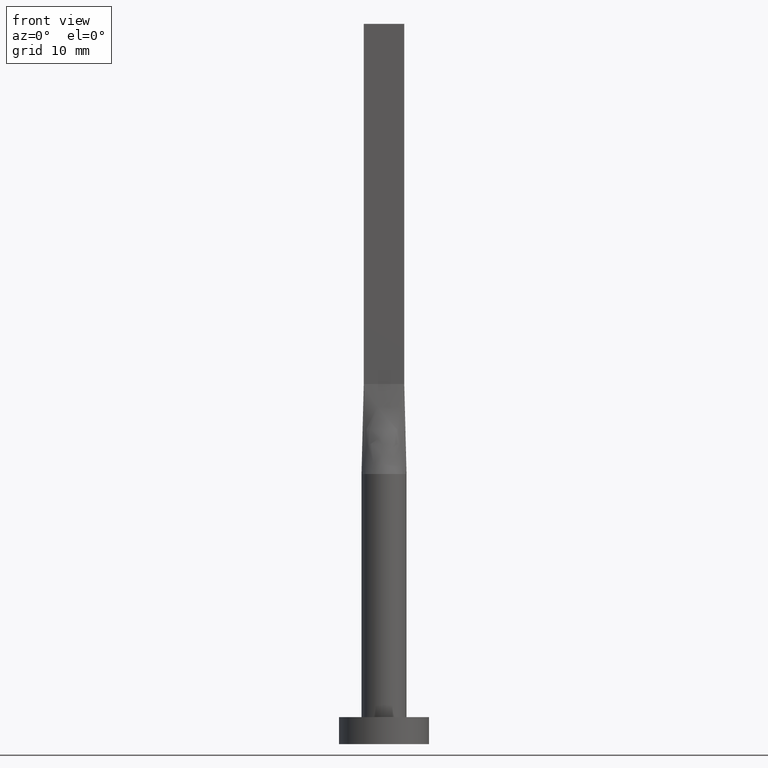
[diagram: clean part render]
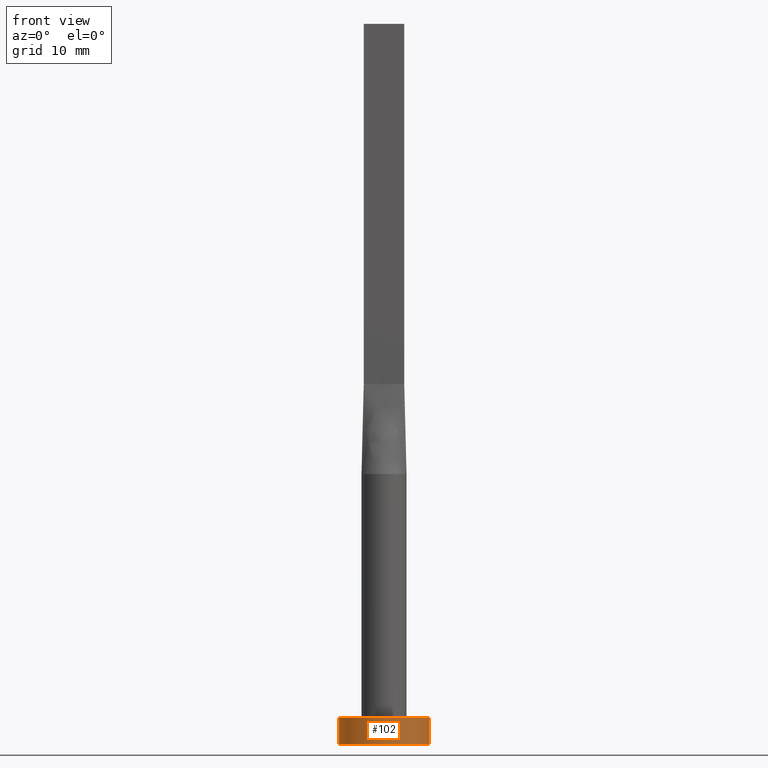
[diagram: same view with one face highlighted and labeled with its STEP entity id]
A machine part, front view. The second image highlights one B-rep face of the part: STEP entity #102.
In plain terms, the highlighted cylindrical surface (partial cylindrical patch) has radius 5 mm, axis along (-0, -0, -1).
Its self-contained STEP definition (entity closure, byte-faithful):
#5 = DIRECTION ( 'NONE',  ( 1.000000000000000000, 0.000000000000000000, 0.000000000000000000 ) ) ;
#21 = ORIENTED_EDGE ( 'NONE', *, *, #166, .T. ) ;
#33 = DIRECTION ( 'NONE',  ( -0.000000000000000000, -0.000000000000000000, -1.000000000000000000 ) ) ;
#57 = ORIENTED_EDGE ( 'NONE', *, *, #86, .T. ) ;
#71 = FACE_OUTER_BOUND ( 'NONE', #377, .T. ) ;
#86 = EDGE_CURVE ( 'NONE', #222, #454, #485, .T. ) ;
#102 = ADVANCED_FACE ( 'NONE', ( #71 ), #245, .T. ) ;
#103 = DIRECTION ( 'NONE',  ( -0.000000000000000000, -0.000000000000000000, -1.000000000000000000 ) ) ;
#148 = VECTOR ( 'NONE', #33, 1000.000000000000000 ) ;
#165 = ORIENTED_EDGE ( 'NONE', *, *, #260, .F. ) ;
#166 = EDGE_CURVE ( 'NONE', #454, #195, #455, .T. ) ;
#189 = LINE ( 'NONE', #319, #220 ) ;
#195 = VERTEX_POINT ( 'NONE', #357 ) ;
#219 = DIRECTION ( 'NONE',  ( 0.000000000000000000, 0.000000000000000000, 1.000000000000000000 ) ) ;
#220 = VECTOR ( 'NONE', #103, 1000.000000000000000 ) ;
#222 = VERTEX_POINT ( 'NONE', #489 ) ;
#245 = CYLINDRICAL_SURFACE ( 'NONE', #391, 5.000000000000000000 ) ;
#250 = CARTESIAN_POINT ( 'NONE',  ( 0.000000000000000000, 0.000000000000000000, 3.000000000000000000 ) ) ;
#260 = EDGE_CURVE ( 'NONE', #520, #195, #189, .T. ) ;
#292 = DIRECTION ( 'NONE',  ( 1.000000000000000000, 0.000000000000000000, 0.000000000000000000 ) ) ;
#293 = ORIENTED_EDGE ( 'NONE', *, *, #417, .F. ) ;
#319 = CARTESIAN_POINT ( 'NONE',  ( 5.000000000000000000, 6.123233995736766282E-16, 3.000000000000000000 ) ) ;
#344 = CARTESIAN_POINT ( 'NONE',  ( 0.000000000000000000, 0.000000000000000000, 0.000000000000000000 ) ) ;
#357 = CARTESIAN_POINT ( 'NONE',  ( 5.000000000000000000, 6.123233995736766282E-16, 0.000000000000000000 ) ) ;
#362 = CARTESIAN_POINT ( 'NONE',  ( 5.000000000000000000, 6.123233995736766282E-16, 3.000000000000000000 ) ) ;
#377 = EDGE_LOOP ( 'NONE', ( #165, #293, #57, #21 ) ) ;
#384 = DIRECTION ( 'NONE',  ( 0.000000000000000000, 0.000000000000000000, 1.000000000000000000 ) ) ;
#391 = AXIS2_PLACEMENT_3D ( 'NONE', #250, #555, #463 ) ;
#417 = EDGE_CURVE ( 'NONE', #222, #520, #519, .T. ) ;
#454 = VERTEX_POINT ( 'NONE', #540 ) ;
#455 = CIRCLE ( 'NONE', #580, 5.000000000000000000 ) ;
#463 = DIRECTION ( 'NONE',  ( -1.000000000000000000, 0.000000000000000000, 0.000000000000000000 ) ) ;
#469 = CARTESIAN_POINT ( 'NONE',  ( 0.000000000000000000, 0.000000000000000000, 3.000000000000000000 ) ) ;
#485 = LINE ( 'NONE', #487, #148 ) ;
#487 = CARTESIAN_POINT ( 'NONE',  ( -5.000000000000000000, 0.000000000000000000, 3.000000000000000000 ) ) ;
#489 = CARTESIAN_POINT ( 'NONE',  ( -5.000000000000000000, 0.000000000000000000, 3.000000000000000000 ) ) ;
#519 = CIRCLE ( 'NONE', #532, 5.000000000000000000 ) ;
#520 = VERTEX_POINT ( 'NONE', #362 ) ;
#532 = AXIS2_PLACEMENT_3D ( 'NONE', #469, #384, #5 ) ;
#540 = CARTESIAN_POINT ( 'NONE',  ( -5.000000000000000000, 0.000000000000000000, 0.000000000000000000 ) ) ;
#555 = DIRECTION ( 'NONE',  ( -0.000000000000000000, -0.000000000000000000, -1.000000000000000000 ) ) ;
#580 = AXIS2_PLACEMENT_3D ( 'NONE', #344, #219, #292 ) ;